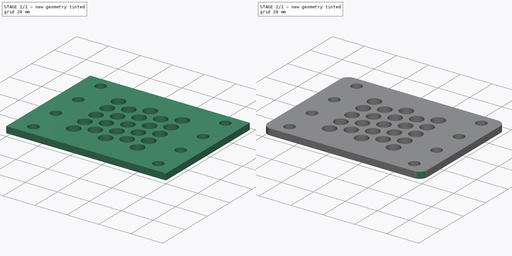
[diagram: build sequence overview — one tinted view per stage of 2, left to right]
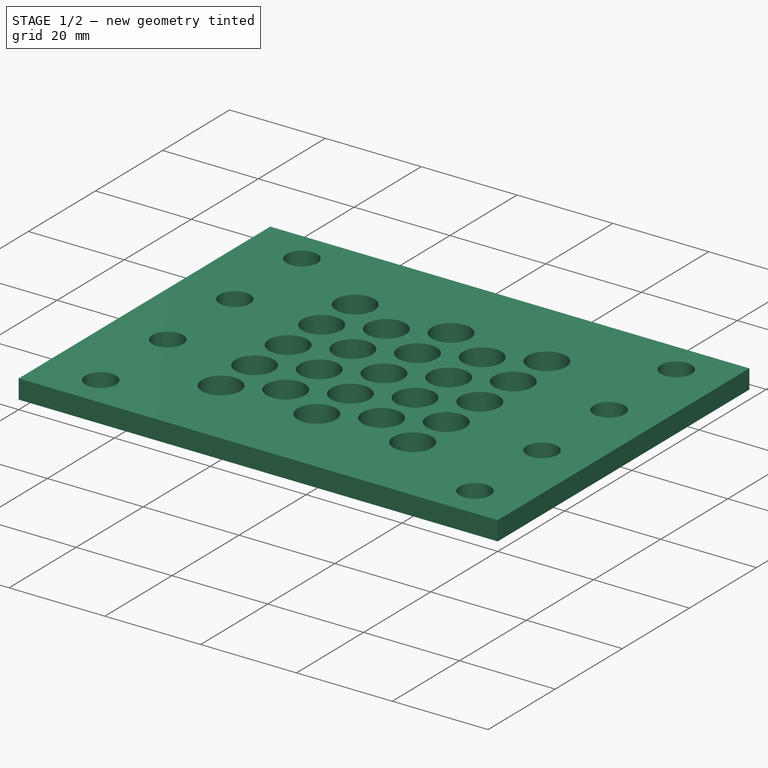
[diagram: stage 1 of 2 — iso view after this stage's code; geometry added in this stage tinted green]
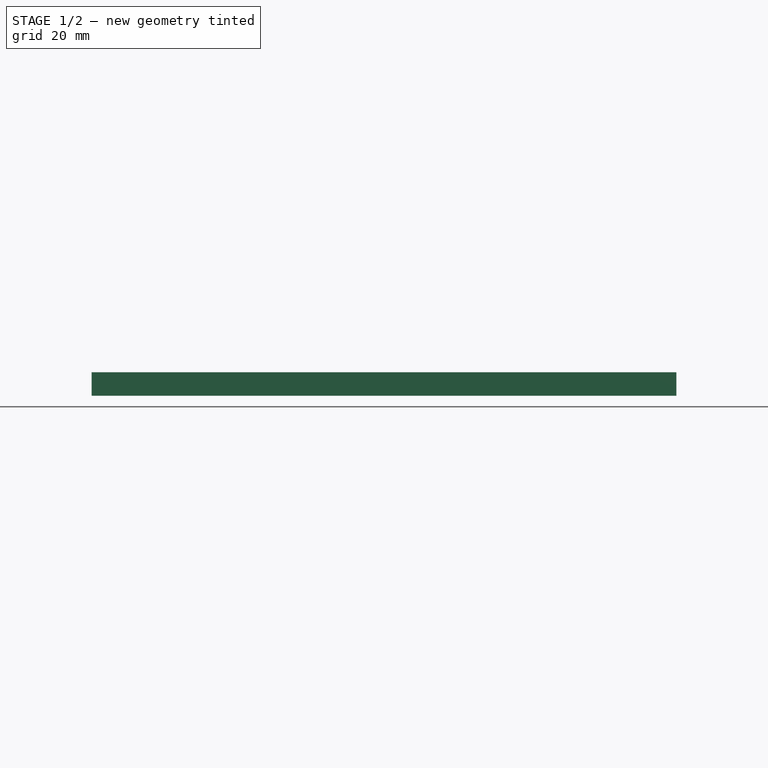
[diagram: stage 1 of 2 — front view after this stage's code; geometry added in this stage tinted green]
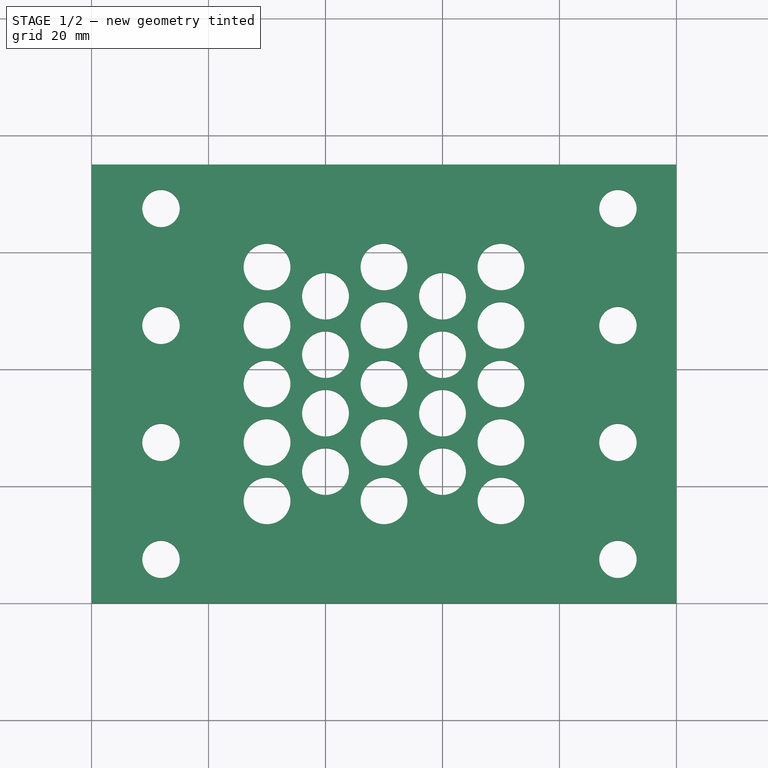
[diagram: stage 1 of 2 — top view after this stage's code; geometry added in this stage tinted green]
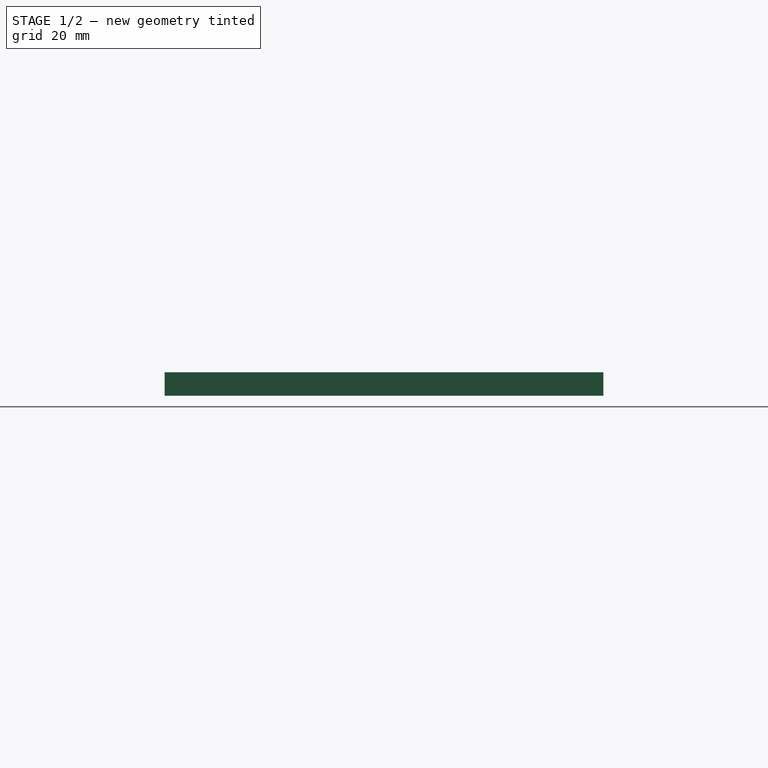
[diagram: stage 1 of 2 — right view after this stage's code; geometry added in this stage tinted green]
FCSTD DOCUMENT  (FreeCAD 0.19R17798 (Git))
Label: aircage
License: All rights reserved
LicenseURL: http://en.wikipedia.org/wiki/All_rights_reserved
objects: Sketcher::SketchObject×2, PartDesign::Pad×1, PartDesign::Pocket×1, PartDesign::Fillet×1, PartDesign::Body×1
note: 8 computed .brp shape members not serialized (recipe doc carries the construction recipe); baked Part::Feature solids carry a one-line shape summary decoded from their .brp

FEATURE [Sketcher::SketchObject] Sketch
  MapMode = 5
  Support = -> [XY_Plane]
  sketch-geometry (12):
    g0: LineSegment StartX=0 StartY=75 StartZ=0 EndX=100 EndY=75 EndZ=0
    g1: LineSegment StartX=100 StartY=75 StartZ=0 EndX=100 EndY=0 EndZ=0
    g2: LineSegment StartX=100 StartY=0 StartZ=0 EndX=0 EndY=0 EndZ=0
    g3: LineSegment StartX=0 StartY=0 StartZ=0 EndX=0 EndY=75 EndZ=0
    g4: Circle CenterX=11.8716 CenterY=67.5 CenterZ=0 NormalX=0 NormalY=0 NormalZ=1 AngleXU=0 Radius=3.2
    g5: Circle CenterX=11.8716 CenterY=47.5 CenterZ=0 NormalX=0 NormalY=0 NormalZ=1 AngleXU=0 Radius=3.2
    g6: Circle CenterX=11.8716 CenterY=27.5 CenterZ=0 NormalX=0 NormalY=0 NormalZ=1 AngleXU=0 Radius=3.2
    g7: Circle CenterX=11.8716 CenterY=7.5 CenterZ=0 NormalX=0 NormalY=0 NormalZ=1 AngleXU=0 Radius=3.2
    g8: Circle CenterX=90 CenterY=67.5 CenterZ=0 NormalX=0 NormalY=0 NormalZ=1 AngleXU=0 Radius=3.2
    g9: Circle CenterX=90 CenterY=47.5 CenterZ=0 NormalX=0 NormalY=0 NormalZ=1 AngleXU=0 Radius=3.2
    g10: Circle CenterX=90 CenterY=27.5 CenterZ=0 NormalX=0 NormalY=0 NormalZ=1 AngleXU=0 Radius=3.2
    g11: Circle CenterX=90 CenterY=7.5 CenterZ=0 NormalX=0 NormalY=0 NormalZ=1 AngleXU=0 Radius=3.2
  constraints (31):
    c: Coincident(g0,g1)
    c: Coincident(g1,g2)
    c: Coincident(g2,g3)
    c: Coincident(g3,g0)
    c: Horizontal(g0)
    c: Horizontal(g2)
    c: Vertical(g1)
    c: Vertical(g3)
    c: Coincident(g2,g-1)
    c: DistanceX(g0,g0) = 100
    c: DistanceY(g3,g3) = 75
    c: DistanceY(g2,g7) = 7.5
    c: DistanceX(g7,g6) = 0
    c: DistanceX(g5,g6) = 0
    c: DistanceX(g4,g5) = 0
    c: DistanceY(g7,g6) = 20
    c: DistanceY(g6,g5) = 20
    c: DistanceY(g5,g4) = 20
    c: DistanceX(g2,g11) = 90
    c: DistanceY(g7,g11) = 0
    c: DistanceY(g6,g10) = 0
    c: DistanceY(g9,g5) = 0
    c: DistanceY(g8,g4) = 0
    c: DistanceX(g10,g11) = 0
    c: DistanceX(g9,g10) = 0
    c: DistanceX(g8,g9) = 0
    c: Radius(g7) = 3.2
    c: Equal(g7,g6)
    c: Equal(g7,g5)
    c: Equal(g7,g4)
    c: Equal(g7, g8-g11) x4
FEATURE [PartDesign::Pad] Pad
  Length = 4
  Length2 = 100
  Profile = -> Sketch
  Type = 0
FEATURE [Sketcher::SketchObject] Sketch001
  MapMode = 5
  Placement = pos=(0,0,4) rot=(0,0,1;0rad)
  Support = -> [Pad]
  sketch-geometry (23):
    g0: Circle CenterX=30 CenterY=57.5 CenterZ=0 NormalX=0 NormalY=0 NormalZ=1 AngleXU=0 Radius=4
    g1: Circle CenterX=30 CenterY=47.5 CenterZ=0 NormalX=0 NormalY=0 NormalZ=1 AngleXU=0 Radius=4
    g2: Circle CenterX=30 CenterY=37.5 CenterZ=0 NormalX=0 NormalY=0 NormalZ=1 AngleXU=0 Radius=4
    g3: Circle CenterX=30 CenterY=27.5 CenterZ=0 NormalX=0 NormalY=0 NormalZ=1 AngleXU=0 Radius=4
    g4: Circle CenterX=30 CenterY=17.5 CenterZ=0 NormalX=0 NormalY=0 NormalZ=1 AngleXU=0 Radius=4
    g5: Circle CenterX=50 CenterY=57.5 CenterZ=0 NormalX=0 NormalY=0 NormalZ=1 AngleXU=0 Radius=4
    g6: Circle CenterX=50 CenterY=47.5 CenterZ=0 NormalX=0 NormalY=0 NormalZ=1 AngleXU=0 Radius=4
    g7: Circle CenterX=50 CenterY=37.5 CenterZ=0 NormalX=0 NormalY=0 NormalZ=1 AngleXU=0 Radius=4
    g8: Circle CenterX=50 CenterY=27.5 CenterZ=0 NormalX=0 NormalY=0 NormalZ=1 AngleXU=0 Radius=4
    g9: Circle CenterX=50 CenterY=17.5 CenterZ=0 NormalX=0 NormalY=0 NormalZ=1 AngleXU=0 Radius=4
    g10: Circle CenterX=70 CenterY=57.5 CenterZ=0 NormalX=0 NormalY=0 NormalZ=1 AngleXU=0 Radius=4
    g11: Circle CenterX=70 CenterY=47.5 CenterZ=0 NormalX=0 NormalY=0 NormalZ=1 AngleXU=0 Radius=4
    g12: Circle CenterX=70 CenterY=37.5 CenterZ=0 NormalX=0 NormalY=0 NormalZ=1 AngleXU=0 Radius=4
    g13: Circle CenterX=70 CenterY=27.5 CenterZ=0 NormalX=0 NormalY=0 NormalZ=1 AngleXU=0 Radius=4
    g14: Circle CenterX=70 CenterY=17.5 CenterZ=0 NormalX=0 NormalY=0 NormalZ=1 AngleXU=0 Radius=4
    g15: Circle CenterX=40 CenterY=52.5 CenterZ=0 NormalX=0 NormalY=0 NormalZ=1 AngleXU=0 Radius=4
    g16: Circle CenterX=40 CenterY=42.5 CenterZ=0 NormalX=0 NormalY=0 NormalZ=1 AngleXU=0 Radius=4
    g17: Circle CenterX=40 CenterY=32.5 CenterZ=0 NormalX=0 NormalY=0 NormalZ=1 AngleXU=0 Radius=4
    g18: Circle CenterX=40 CenterY=22.5 CenterZ=0 NormalX=0 NormalY=0 NormalZ=1 AngleXU=0 Radius=4
    g19: Circle CenterX=60 CenterY=52.5 CenterZ=0 NormalX=0 NormalY=0 NormalZ=1 AngleXU=0 Radius=4
    g20: Circle CenterX=60 CenterY=42.5 CenterZ=0 NormalX=0 NormalY=0 NormalZ=1 AngleXU=0 Radius=4
    g21: Circle CenterX=60 CenterY=32.5 CenterZ=0 NormalX=0 NormalY=0 NormalZ=1 AngleXU=0 Radius=4
    g22: Circle CenterX=60 CenterY=22.5 CenterZ=0 NormalX=0 NormalY=0 NormalZ=1 AngleXU=0 Radius=4
  constraints (62):
    c: DistanceY(g-1,g4) = 17.5
    c: DistanceX(g-1,g4) = 30
    c: DistanceX(g3,g4) = 0
    c: DistanceX(g2,g3) = 0
    c: DistanceX(g1,g2) = 0
    c: DistanceX(g0,g1) = 0
    c: DistanceY(g4,g3) = 10
    c: DistanceY(g3,g2) = 10
    c: DistanceY(g2,g1) = 10
    c: DistanceY(g1,g0) = 10
    c: DistanceX(g4,g9) = 20
    c: DistanceX(g9,g14) = 20
    c: DistanceX(g8,g9) = 0
    c: DistanceX(g7,g8) = 0
    c: DistanceX(g6,g7) = 0
    c: DistanceX(g5,g6) = 0
    c: DistanceY(g9,g4) = 0
    c: DistanceY(g8,g3) = 0
    c: DistanceY(g2,g7) = 0
    c: DistanceY(g1,g6) = 0
    c: DistanceY(g0,g5) = 0
    c: DistanceY(g14,g9) = 0
    c: DistanceX(g13,g14) = 0
    c: DistanceX(g12,g13) = 0
    c: DistanceX(g11,g12) = 0
    c: DistanceX(g10,g11) = 0
    c: DistanceY(g13,g8) = 0
    c: DistanceY(g7,g12) = 0
    c: DistanceY(g6,g11) = 0
    c: DistanceY(g5,g10) = 0
    c: Radius(g4) = 4
    c: Equal(g4,g3)
    c: Equal(g4,g2)
    c: Equal(g4,g1)
    c: Equal(g4,g0)
    c: Equal(g4, g5-g9) x5
    c: Equal(g4,g14)
    c: Equal(g4,g13)
    c: Equal(g4,g12)
    c: Equal(g4,g11)
    c: Equal(g4,g10)
    c: DistanceX(g4,g18) = 10
    c: DistanceY(g4,g18) = 5
    c: DistanceX(g17,g18) = 0
    c: DistanceX(g17,g16) = 0
    c: DistanceX(g15,g16) = 0
    c: DistanceX(g18,g22) = 20
    c: DistanceY(g18,g22) = 0
    c: DistanceX(g21,g22) = 0
    c: DistanceX(g20,g21) = 0
    c: DistanceX(g19,g20) = 0
    c: DistanceY(g18,g17) = 10
    c: DistanceY(g17,g16) = 10
    c: DistanceY(g16,g15) = 10
    c: DistanceY(g22,g21) = 10
    c: DistanceY(g21,g20) = 10
    c: DistanceY(g20,g19) = 10
    c: Radius(g18) = 4
    c: Equal(g18,g17)
    c: Equal(g18,g16)
    c: Equal(g18,g15)
    c: Equal(g18, g19-g22) x4
FEATURE [PartDesign::Pocket] Pocket
  BaseFeature = -> Pad
  Length = 5
  Length2 = 100
  Profile = -> Sketch001
  Type = 0
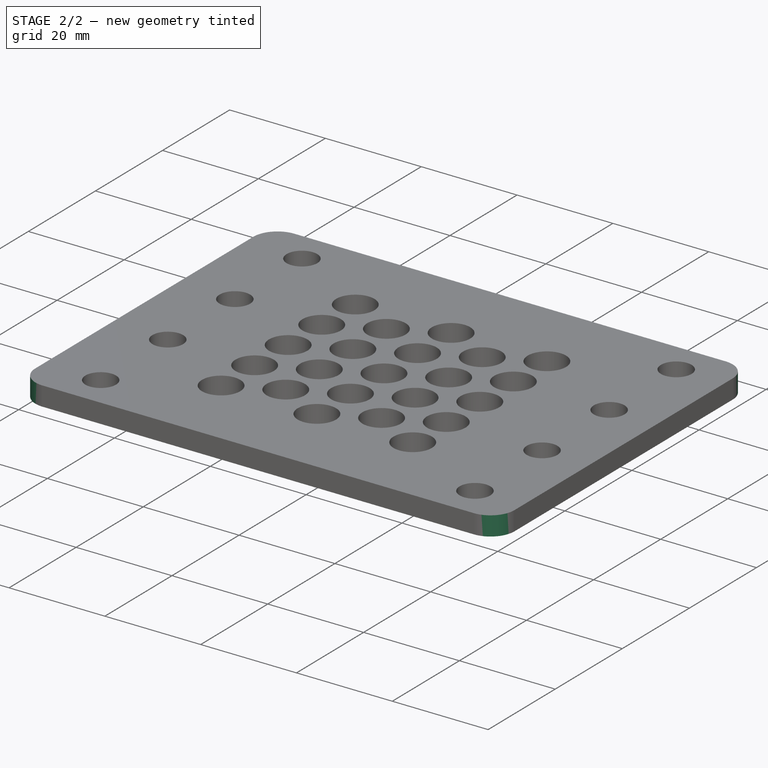
[diagram: stage 2 of 2 — iso view after this stage's code; geometry added in this stage tinted green]
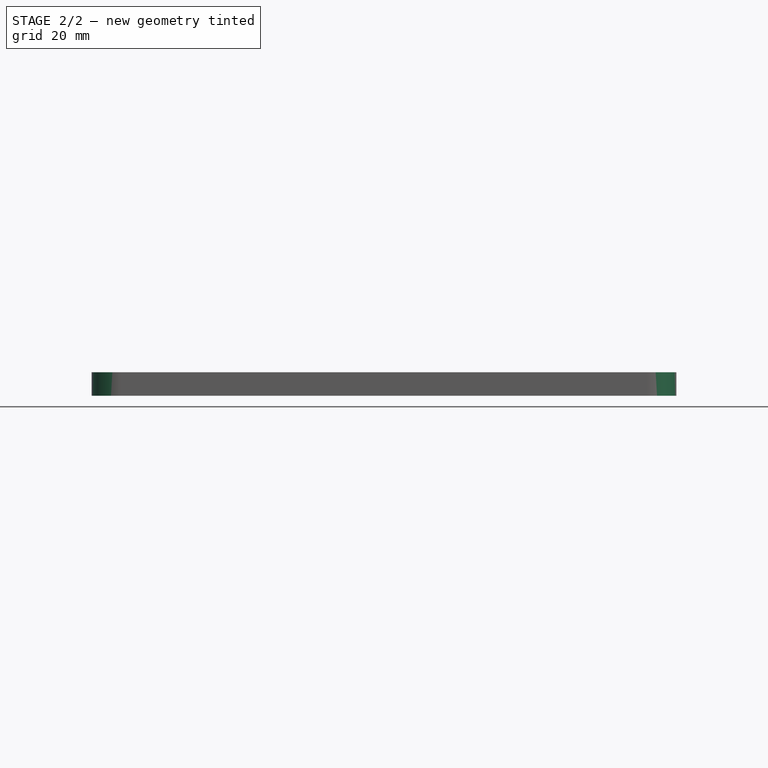
[diagram: stage 2 of 2 — front view after this stage's code; geometry added in this stage tinted green]
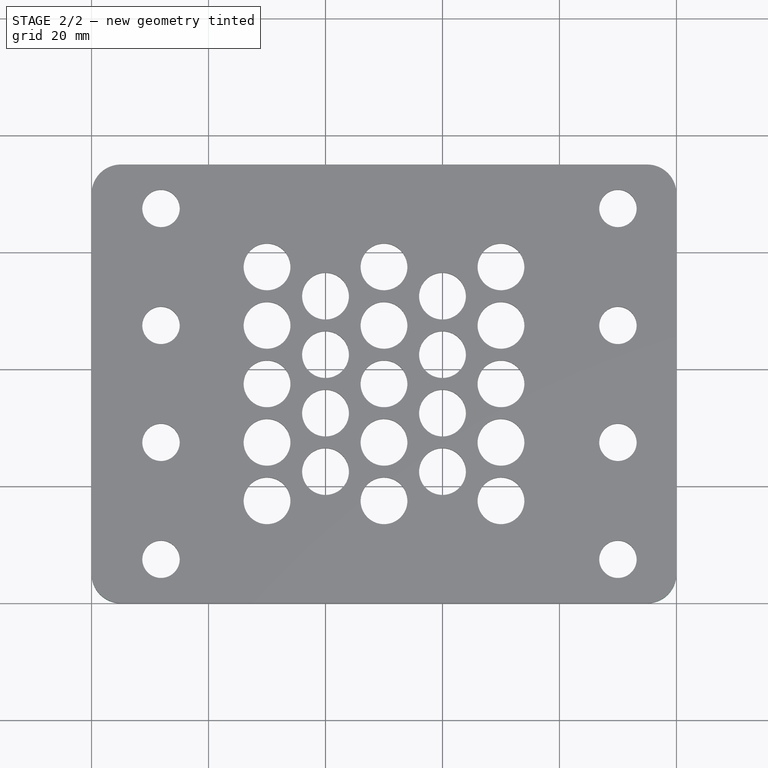
[diagram: stage 2 of 2 — top view after this stage's code; geometry added in this stage tinted green]
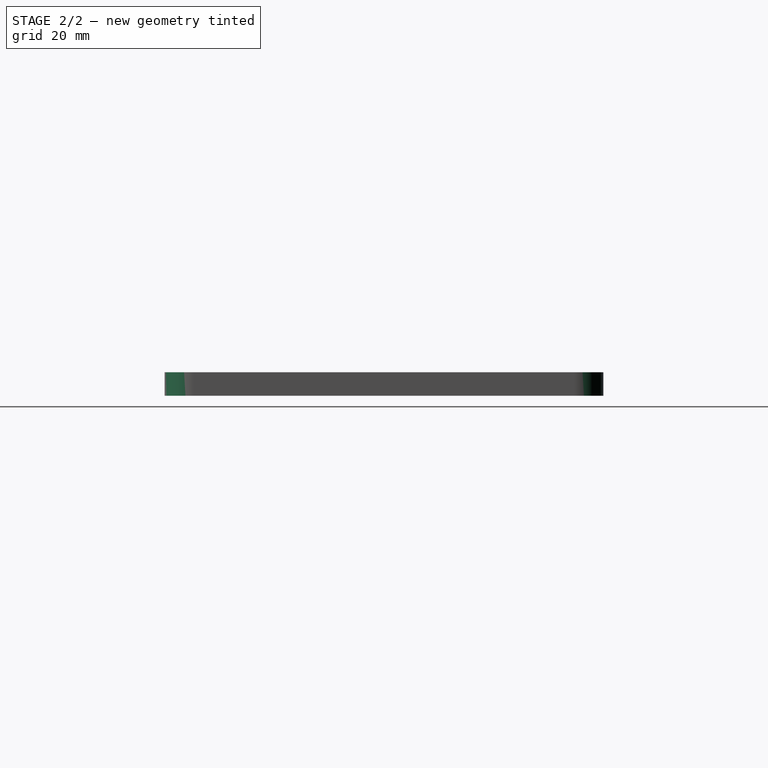
[diagram: stage 2 of 2 — right view after this stage's code; geometry added in this stage tinted green]
FEATURE [PartDesign::Fillet] Fillet
  Base = -> Pocket [Edge2,Edge8,Edge1,Edge5]
  BaseFeature = -> Pocket
  Radius = 5
FEATURE [PartDesign::Body] Body
  Group = -> [Sketch,Pad,Sketch001,Pocket,Fillet]
  Origin = -> Origin
  Tip = -> Fillet
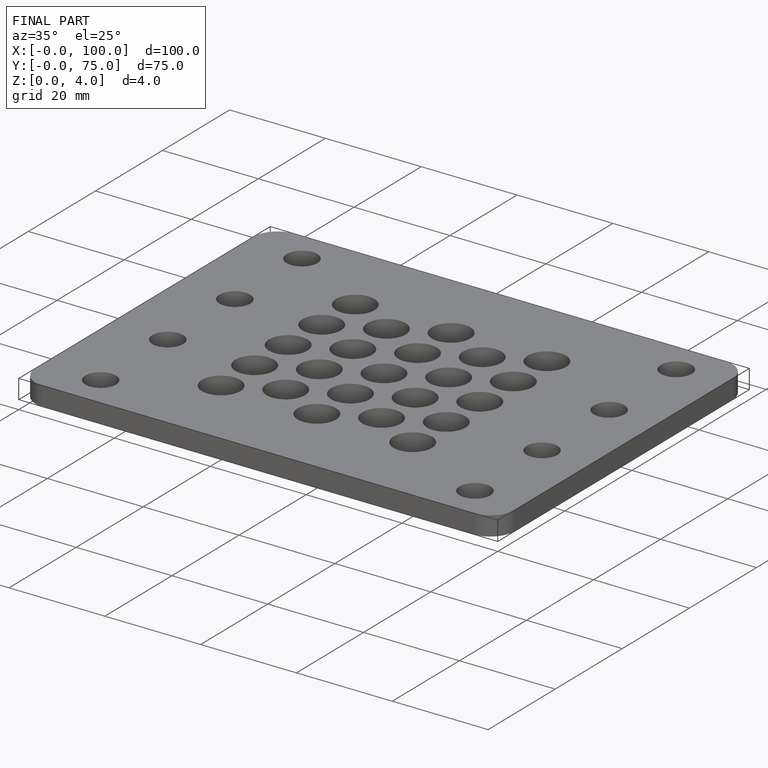
[diagram: finished part — iso view with bounding-box wireframe]
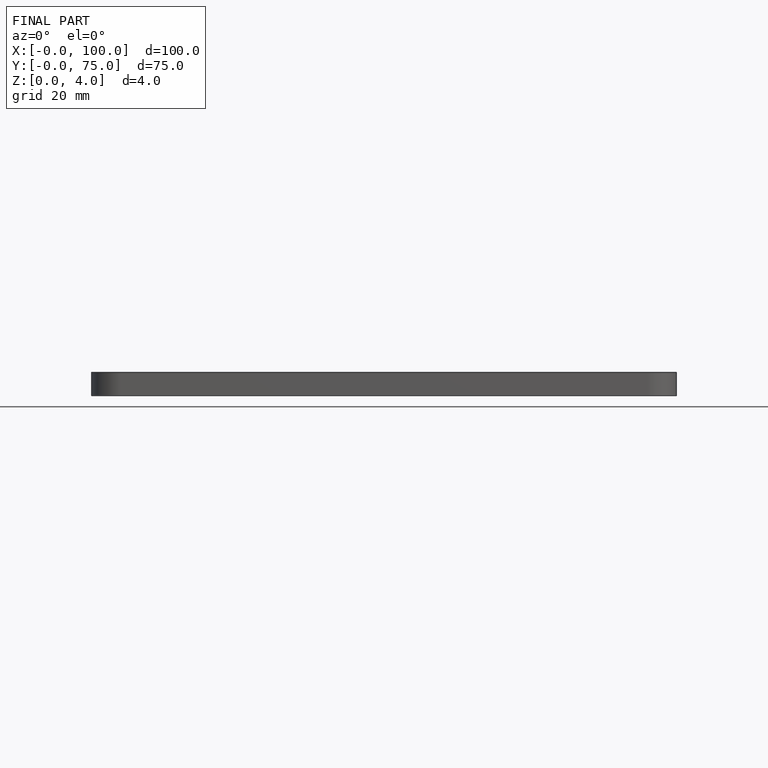
[diagram: finished part — front view with bounding-box wireframe]
